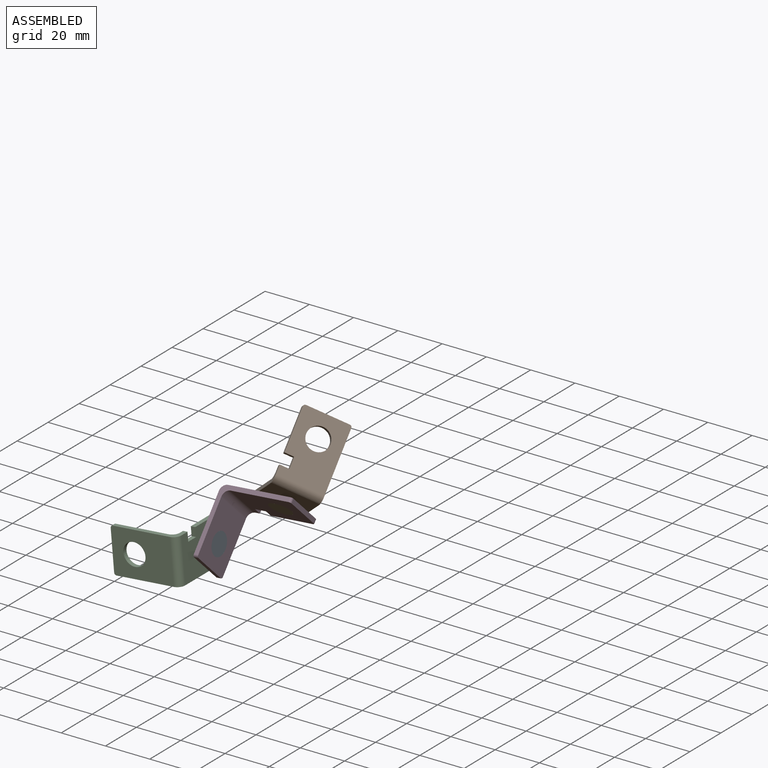
[diagram: assembled view]
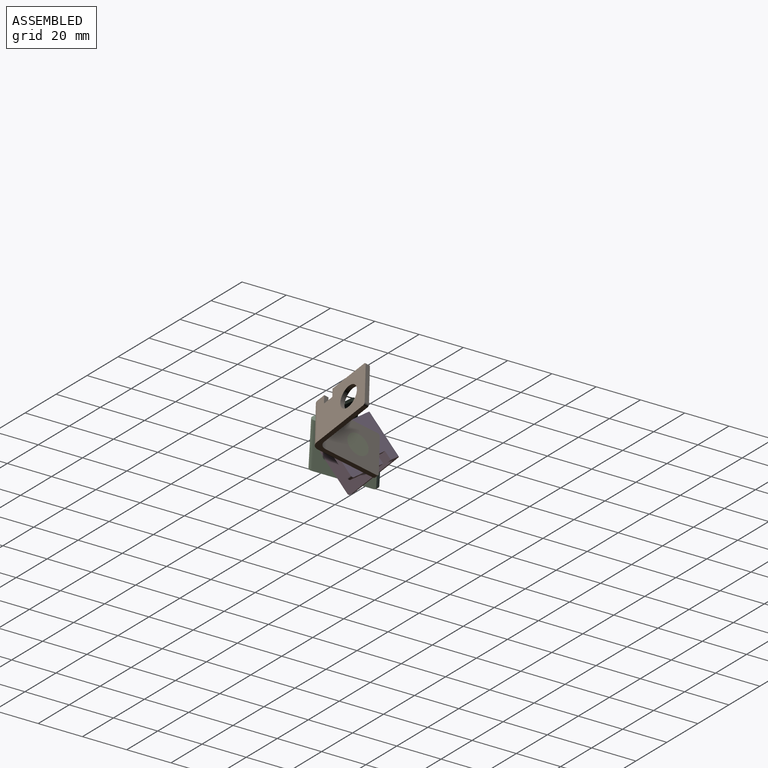
[diagram: assembled view, second angle]
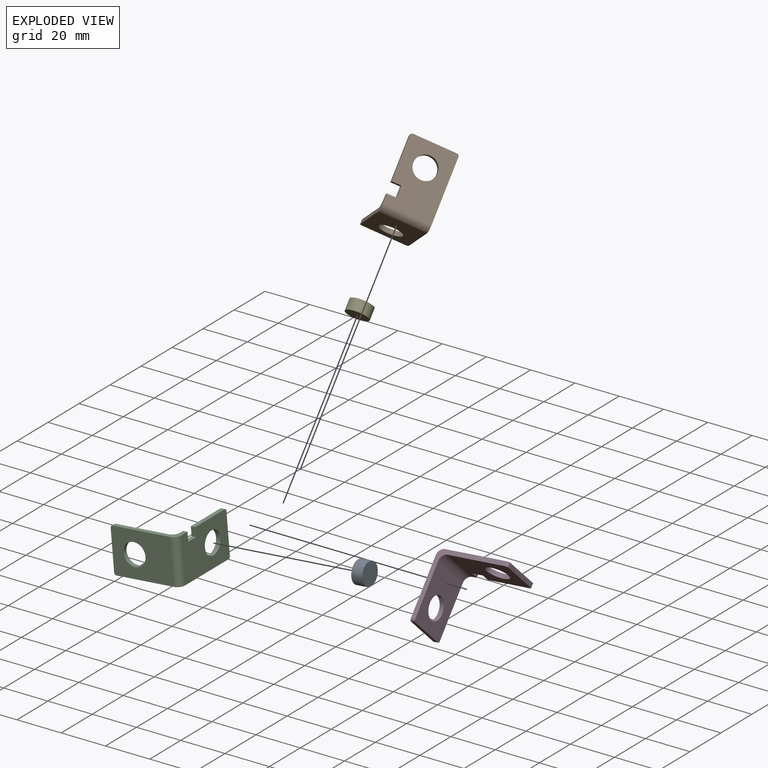
[diagram: exploded view]
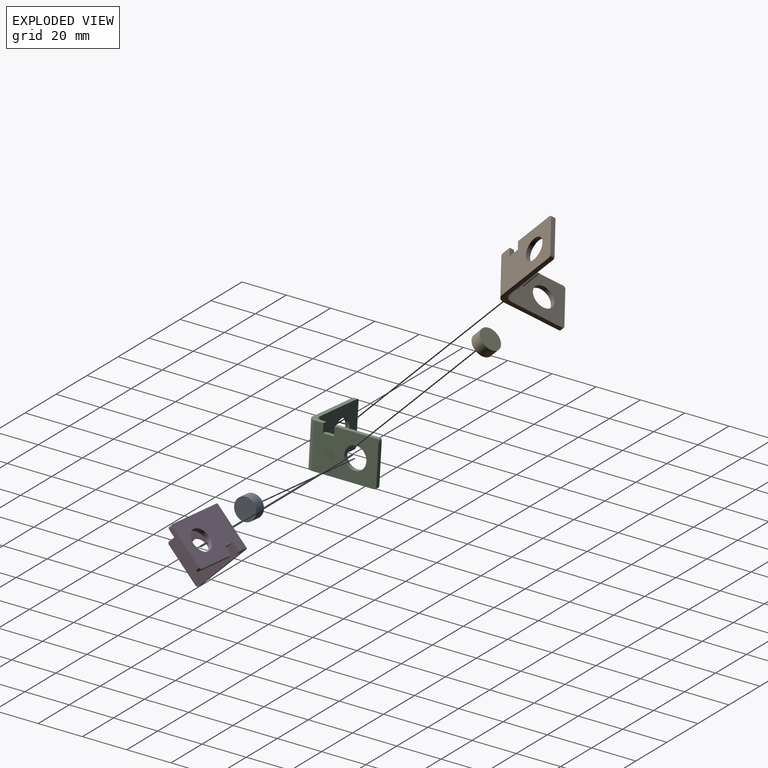
[diagram: exploded view, second angle]
ASSEMBLY  parts=5 mates=4
PART A: 3 faces, bbox 10x5x10 mm
  f0: cylinder r=5mm len=10mm, axis (0,1,0), area 157.1mm2, adj f1,f2
  f1: plane 10x10mm, normal (0,-1,0), area 78.5mm2, adj f0
  f2: plane 10x10mm, normal (0,1,0), area 78.5mm2, adj f0
PART B: 20 faces, bbox 20x30x32 mm
  f0: plane 29x7mm, normal (1,0,0), area 68mm2, adj f1,f8,f9,f10,f11,f13,f14,f17
  f1: plane 4x2mm, normal (0,0,1), area 8mm2, adj f0,f2,f8,f9
  f2: plane 5x2mm, normal (1,0,0), area 10mm2, adj f1,f3,f8,f9
  f3: plane 4x2mm, normal (0,0,-1), area 8mm2, adj f2,f4,f8,f9
  f4: plane 19x2mm, normal (1,0,0), area 38mm2, adj f3,f8,f9,f18
  f5: plane 18x2mm, normal (0,0,1), area 36mm2, adj f8,f9,f18,f19
  f6: plane 31x29mm, normal (-1,0,0), area 116mm2, adj f8,f9,f10,f11,f13,f14,f16,f19
  f7: cylinder r=5mm len=10mm, axis (0,1,0), area 62.8mm2, adj f8,f9
  f8: plane 27x20mm, normal (0,-1,0), area 441mm2, adj f0,f1,f2,f3,f4,f5,f6,f7
  f9: plane 29x20mm, normal (0,1,0), area 481mm2, adj f0,f1,f2,f3,f4,f5,f6,f7
  f10: plane 25x20mm, normal (0,0,1), area 421mm2, adj f0,f6,f12,f14,f15,f16,f17
  f11: plane 27x20mm, normal (0,0,-1), area 461mm2, adj f0,f6,f12,f13,f15,f16,f17
  f12: plane 18x2mm, normal (0,-1,0), area 36mm2, adj f10,f11,f16,f17
  f13: cylinder r=3mm len=20mm, axis (1,0,0), area 94.2mm2, adj f0,f6,f9,f11
  f14: cylinder r=3mm len=20mm, axis (-1,0,0), area 94.2mm2, adj f0,f6,f8,f10
  f15: cylinder r=5mm len=10mm, axis (0,0,1), area 62.8mm2, adj f10,f11
  f16: cylinder r=1mm len=2mm, axis (0,0,1), area 3.1mm2, adj f6,f10,f11,f12
  f17: cylinder r=1mm len=2mm, axis (0,0,-1), area 3.1mm2, adj f0,f10,f11,f12
  f18: cylinder r=1mm len=2mm, axis (0,1,0), area 3.1mm2, adj f4,f5,f8,f9
  f19: cylinder r=1mm len=2mm, axis (0,-1,0), area 3.1mm2, adj f5,f6,f8,f9
PART C: same geometry as B
PART D: same geometry as B
PART E: same geometry as A
PLACE A rot(axis=(-0.7,0.67,0.25),145.2deg) t=(27.23,21.69,11.7)mm
PLACE B rot(axis=(-0.12,-0.39,-0.91),140.5deg) t=(63,38.56,51.84)mm
PLACE C rot(axis=(-0.54,-0.59,-0.59),122.9deg) t=(29.22,16.69,11.88)mm
PLACE D rot(axis=(0.35,0.85,0.39),94.1deg) t=(45.92,35.83,27.53)mm
PLACE E rot(axis=(-0.93,-0.17,0.34),139.4deg) t=(51.02,34.42,26.56)mm
MATE fastened B.f15 <-> E.f0  axis (-0.06,0.71,0.7) through (50.71,37.95,30.08)mm
MATE parallel D.f7 <-> B.f15  axis (-0.06,0.71,0.7) through (50.9,35.83,27.97)mm
MATE parallel C.f7 <-> A.f0  axis (-1,0,-0.09) through (27.23,21.69,11.7)mm
MATE fastened D.f15 <-> A.f0  axis (1,0,0.09) through (32.21,21.69,12.14)mm
